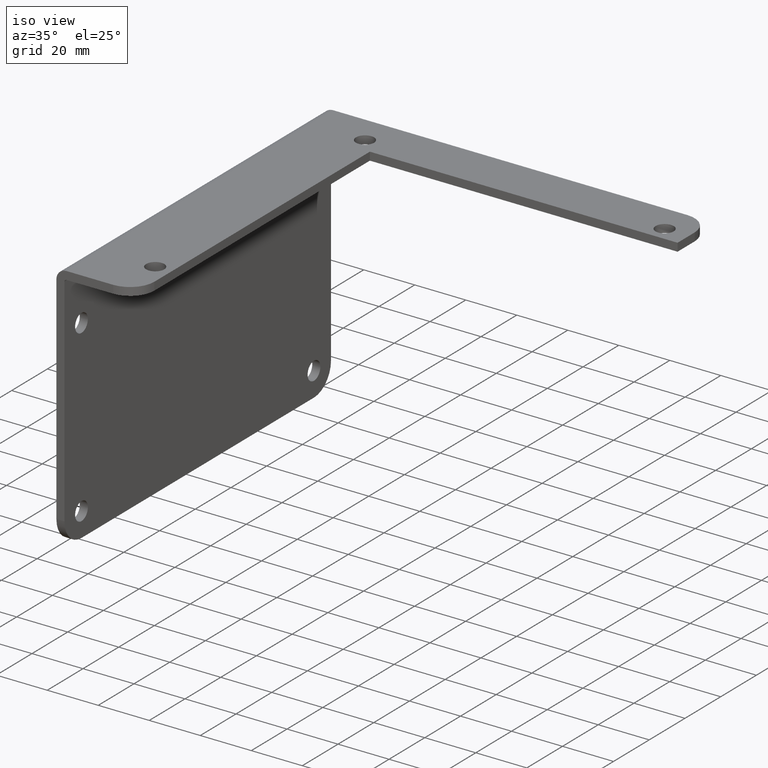
[diagram: clean part render]
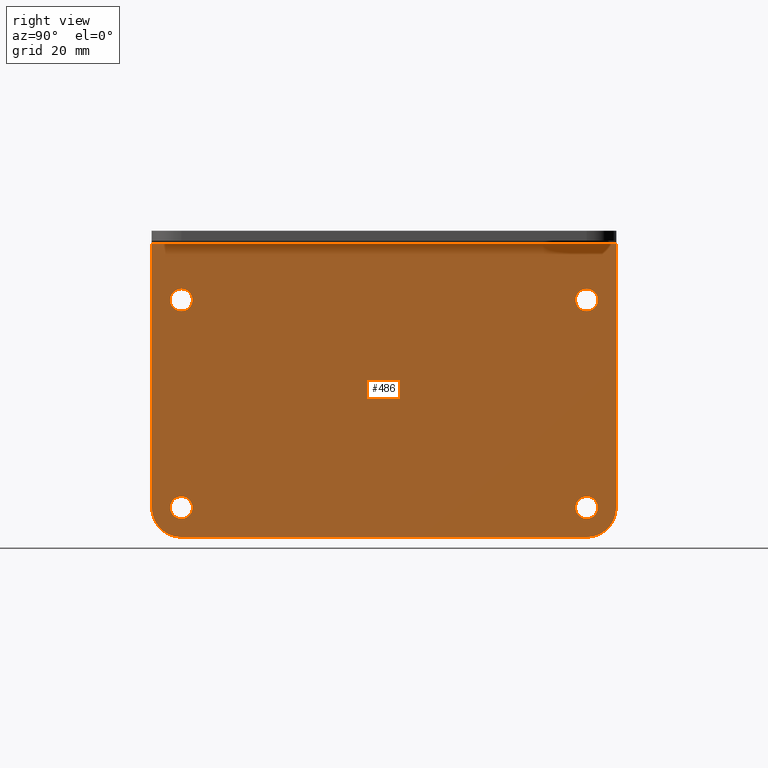
[diagram: tour spotlight — one face highlighted and labeled with its STEP entity id]
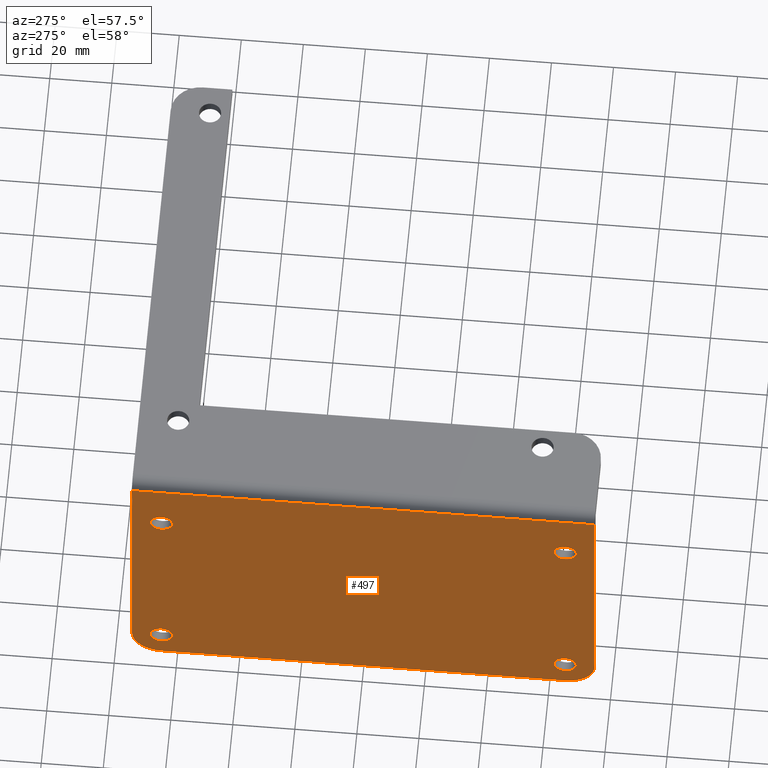
[diagram: tour spotlight — one face highlighted and labeled with its STEP entity id]
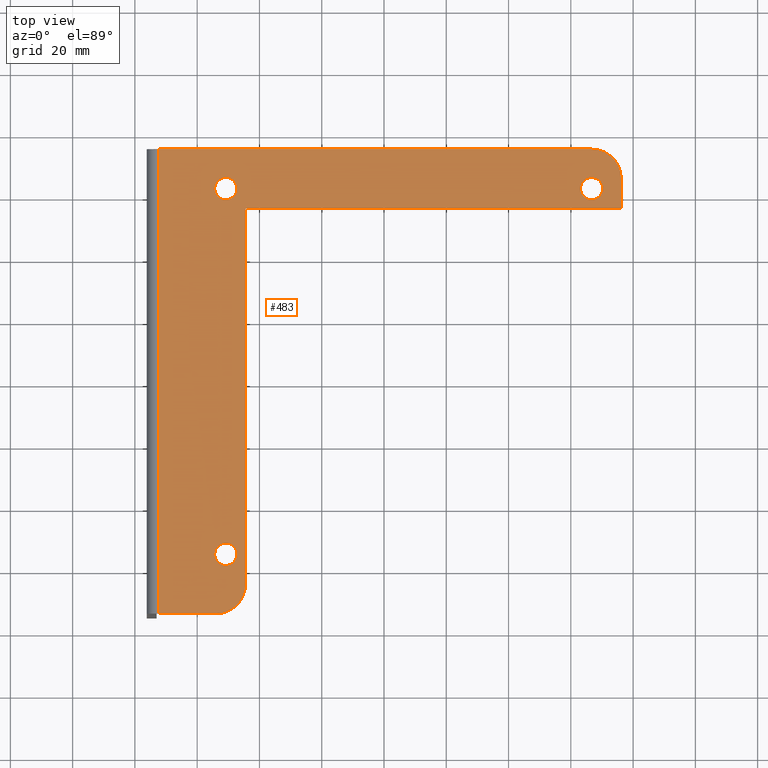
[diagram: tour spotlight — one face highlighted and labeled with its STEP entity id]
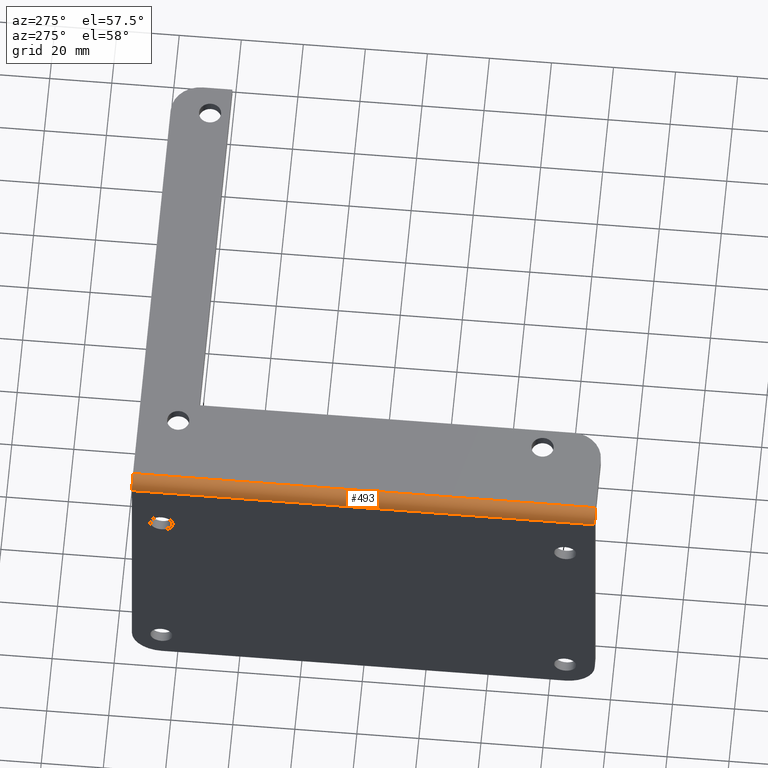
[diagram: tour spotlight — one face highlighted and labeled with its STEP entity id]
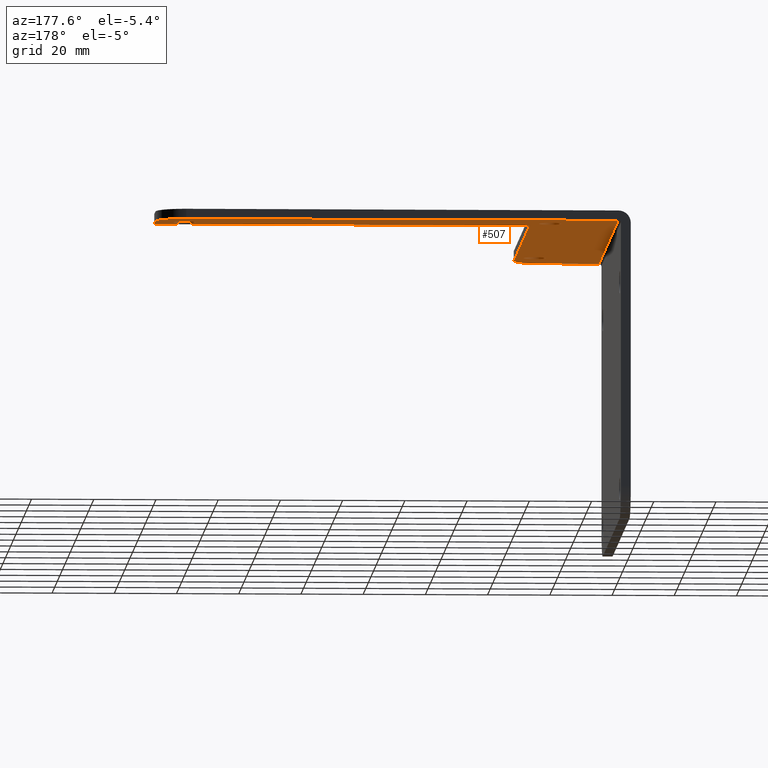
[diagram: tour spotlight — one face highlighted and labeled with its STEP entity id]
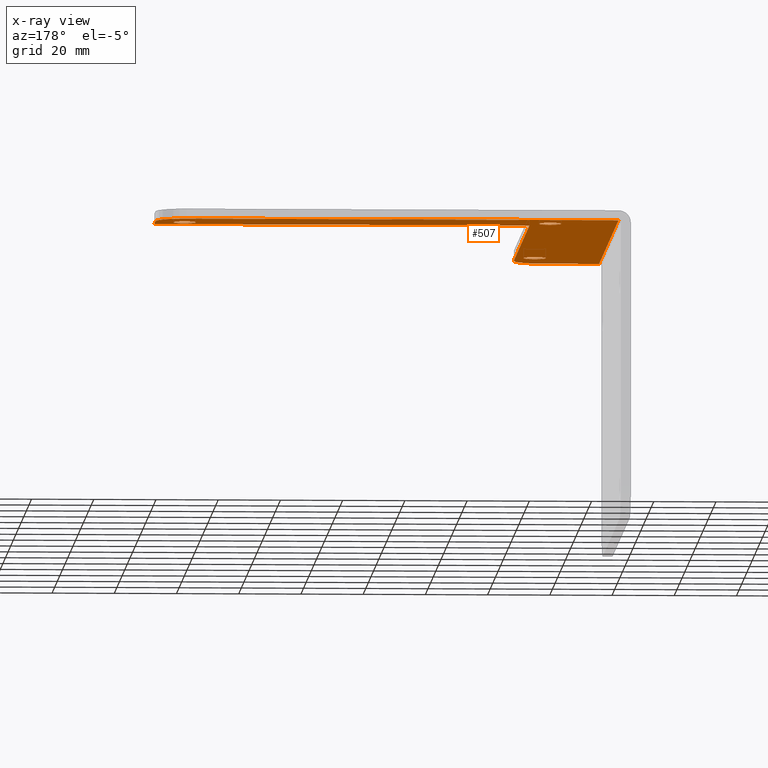
[diagram: x-ray of the same camera — body ghosted, this tour face saturated]
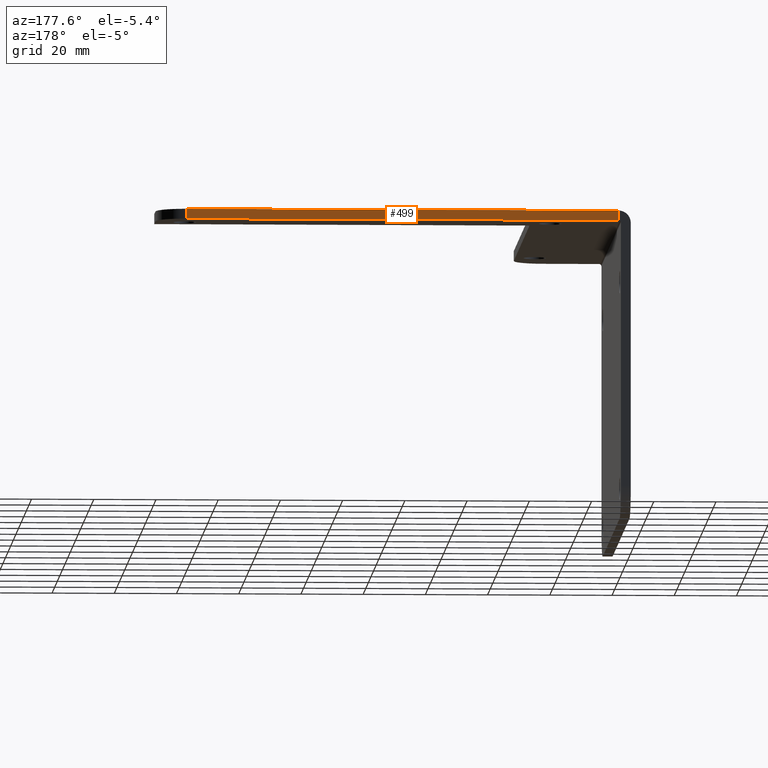
[diagram: tour spotlight — one face highlighted and labeled with its STEP entity id]
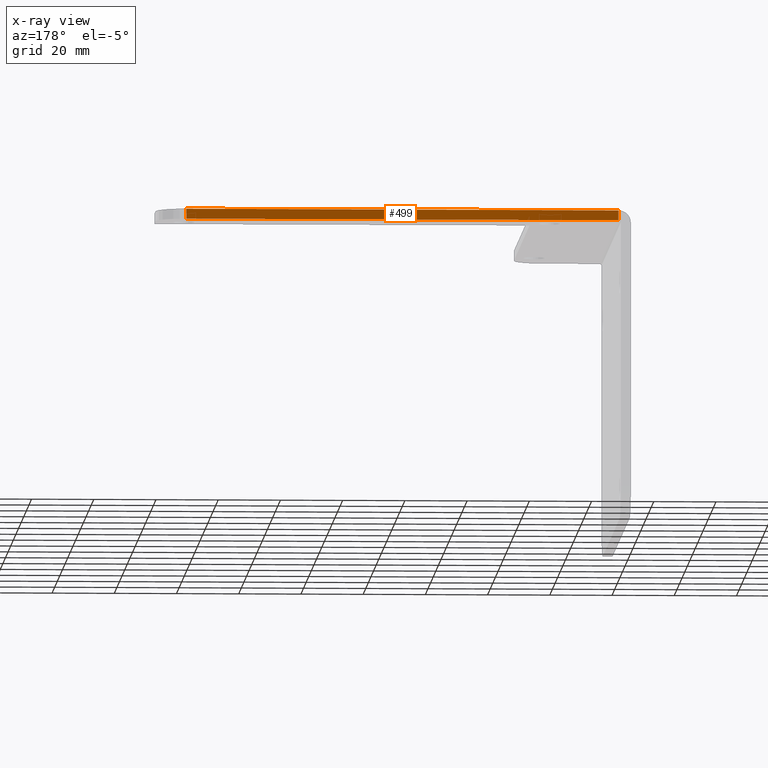
[diagram: x-ray of the same camera — body ghosted, this tour face saturated]
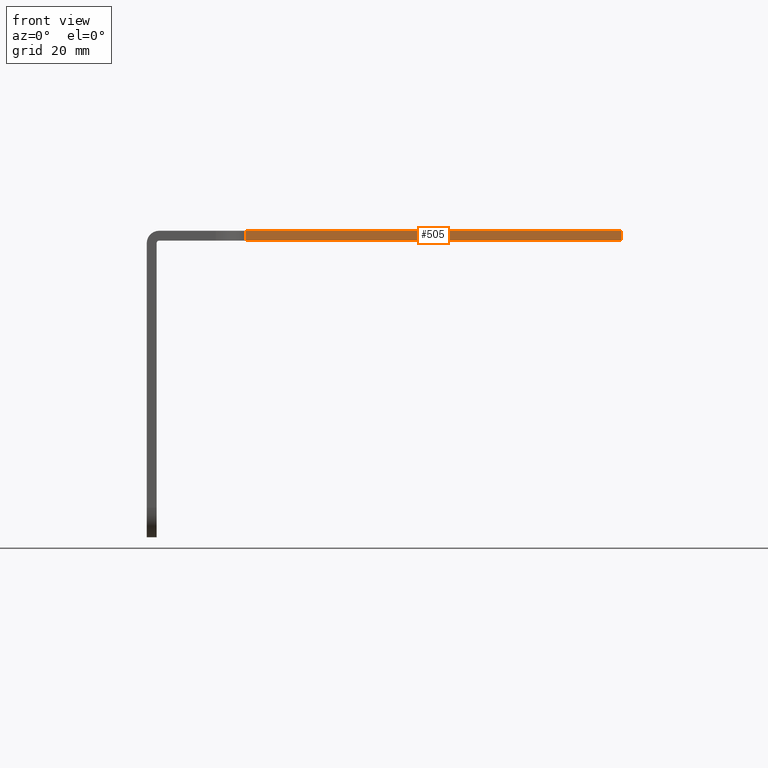
[diagram: tour spotlight — one face highlighted and labeled with its STEP entity id]
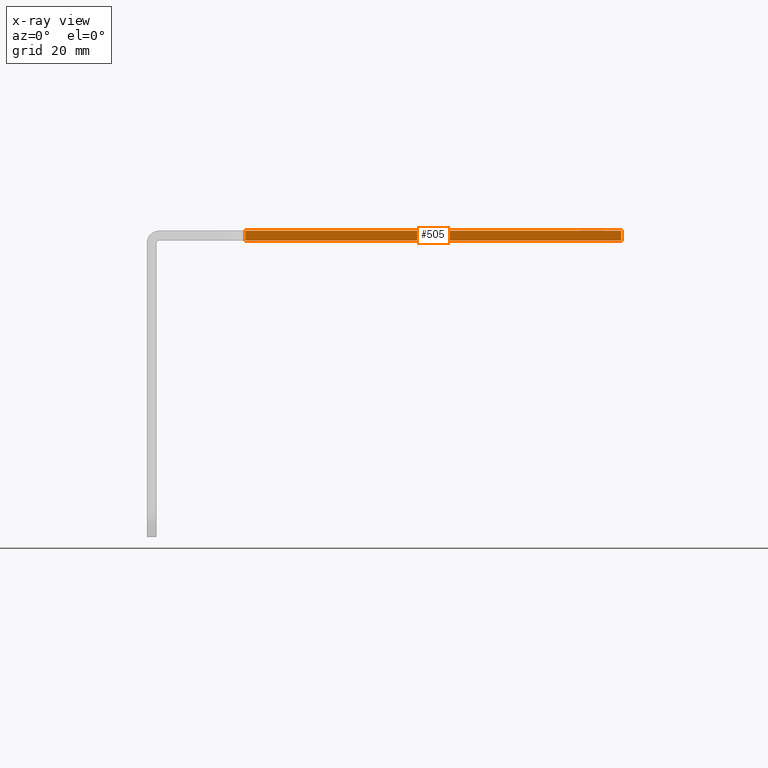
[diagram: x-ray of the same camera — body ghosted, this tour face saturated]
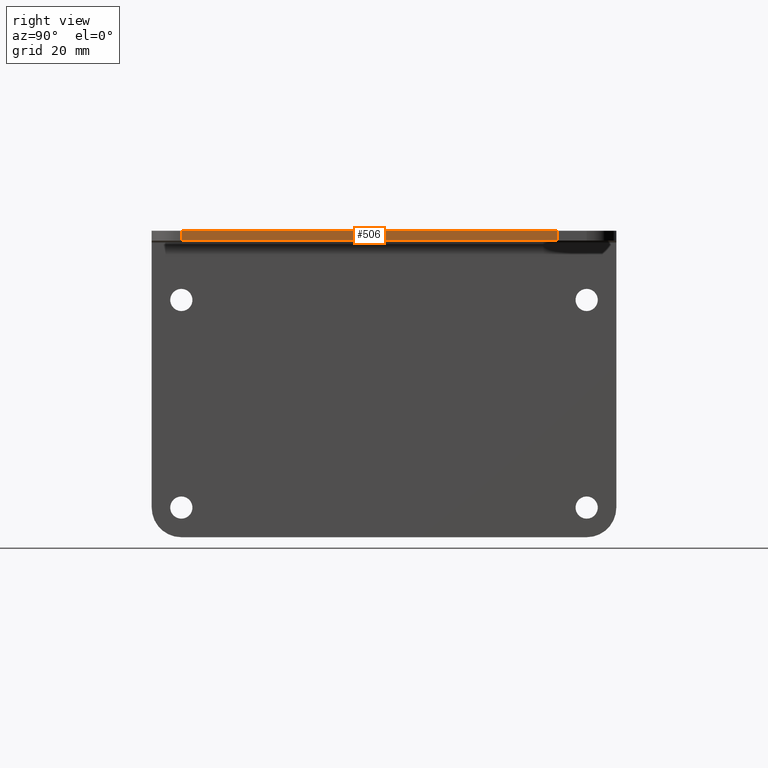
[diagram: tour spotlight — one face highlighted and labeled with its STEP entity id]
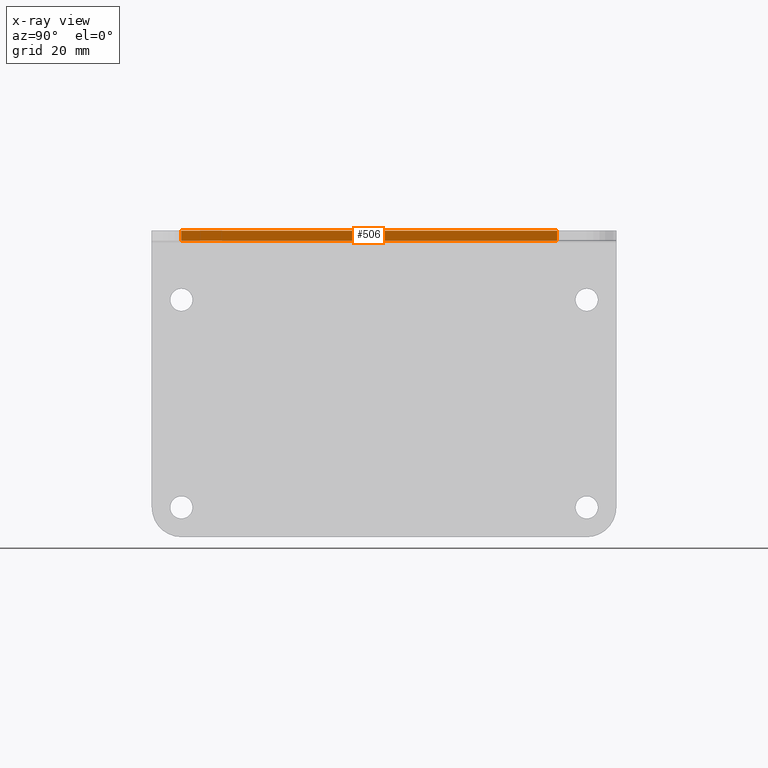
[diagram: x-ray of the same camera — body ghosted, this tour face saturated]
A machine part: a face-by-face anatomy tour. The part has 27 B-rep faces; the first image is the clean iso view, then the 8 largest visible faces are spotlighted one at a time (largest first), each with its STEP entity span.

Face 1 — right view, entity #486. In plain terms, the highlighted planar face has unit normal (-1, 0, -0).
Definition (entity closure, byte-faithful):
#17=FACE_BOUND('',#85,.T.);
#18=FACE_BOUND('',#86,.T.);
#19=FACE_BOUND('',#87,.T.);
#20=FACE_BOUND('',#88,.T.);
#38=PLANE('',#523);
#54=FACE_OUTER_BOUND('',#84,.T.);
#84=EDGE_LOOP('',(#347,#348,#349,#350,#351,#352));
#85=EDGE_LOOP('',(#353));
#86=EDGE_LOOP('',(#354));
#87=EDGE_LOOP('',(#355));
#88=EDGE_LOOP('',(#356));
#136=LINE('',#750,#170);
#139=LINE('',#756,#173);
#140=LINE('',#760,#174);
#141=LINE('',#761,#175);
#170=VECTOR('',#603,3.34375);
#173=VECTOR('',#608,5.125);
#174=VECTOR('',#611,3.34375);
#175=VECTOR('',#612,5.875);
#199=CIRCLE('',#521,0.375);
#200=CIRCLE('',#524,0.375);
#201=CIRCLE('',#525,0.140625);
#202=CIRCLE('',#526,0.140625);
#203=CIRCLE('',#527,0.140625);
#204=CIRCLE('',#528,0.140625);
#234=VERTEX_POINT('',#743);
#235=VERTEX_POINT('',#745);
#236=VERTEX_POINT('',#749);
#238=VERTEX_POINT('',#755);
#239=VERTEX_POINT('',#757);
#240=VERTEX_POINT('',#759);
#241=VERTEX_POINT('',#762);
#242=VERTEX_POINT('',#764);
#243=VERTEX_POINT('',#766);
#244=VERTEX_POINT('',#768);
#278=EDGE_CURVE('',#234,#235,#199,.T.);
#280=EDGE_CURVE('',#235,#236,#136,.T.);
#283=EDGE_CURVE('',#234,#238,#139,.T.);
#284=EDGE_CURVE('',#239,#238,#200,.T.);
#285=EDGE_CURVE('',#239,#240,#140,.T.);
#286=EDGE_CURVE('',#240,#236,#141,.T.);
#287=EDGE_CURVE('',#241,#241,#201,.T.);
#288=EDGE_CURVE('',#242,#242,#202,.T.);
#289=EDGE_CURVE('',#243,#243,#203,.T.);
#290=EDGE_CURVE('',#244,#244,#204,.T.);
#347=ORIENTED_EDGE('',*,*,#278,.F.);
#348=ORIENTED_EDGE('',*,*,#283,.T.);
#349=ORIENTED_EDGE('',*,*,#284,.F.);
#350=ORIENTED_EDGE('',*,*,#285,.T.);
#351=ORIENTED_EDGE('',*,*,#286,.T.);
#352=ORIENTED_EDGE('',*,*,#280,.F.);
#353=ORIENTED_EDGE('',*,*,#287,.T.);
#354=ORIENTED_EDGE('',*,*,#288,.T.);
#355=ORIENTED_EDGE('',*,*,#289,.T.);
#356=ORIENTED_EDGE('',*,*,#290,.T.);
#486=ADVANCED_FACE('',(#54,#17,#18,#19,#20),#38,.F.);
#521=AXIS2_PLACEMENT_3D('',#746,#598,#599);
#523=AXIS2_PLACEMENT_3D('',#754,#606,#607);
#524=AXIS2_PLACEMENT_3D('',#758,#609,#610);
#525=AXIS2_PLACEMENT_3D('',#763,#613,#614);
#526=AXIS2_PLACEMENT_3D('',#765,#615,#616);
#527=AXIS2_PLACEMENT_3D('',#767,#617,#618);
#528=AXIS2_PLACEMENT_3D('',#769,#619,#620);
#598=DIRECTION('center_axis',(-1.,2.04914796784004E-16,-1.71210906378434E-15));
#599=DIRECTION('ref_axis',(1.3187128261911E-15,-0.707106781186547,-0.707106781186548));
#603=DIRECTION('',(-1.72915050606973E-15,-5.95194116066426E-17,1.));
#606=DIRECTION('center_axis',(-1.,2.04914796784004E-16,-1.71210906378434E-15));
#607=DIRECTION('ref_axis',(-2.25597318603832E-15,5.95194116066428E-17,1.));
#608=DIRECTION('',(1.78558234819928E-16,1.,1.78558234819928E-16));
#609=DIRECTION('center_axis',(-1.,2.04914796784004E-16,-1.71210906378434E-15));
#610=DIRECTION('ref_axis',(1.3187128261911E-15,0.707106781186547,-0.707106781186547));
#611=DIRECTION('',(-1.72915050606973E-15,-5.95194116066426E-17,1.));
#612=DIRECTION('',(-2.04914796784004E-16,-1.,-2.49371187223627E-31));
#613=DIRECTION('center_axis',(-1.,2.04914796784004E-16,-1.71210906378434E-15));
#614=DIRECTION('ref_axis',(1.3987061727561E-15,2.3807764642657E-16,-1.));
#615=DIRECTION('center_axis',(-1.,2.04914796784004E-16,-1.71210906378434E-15));
#616=DIRECTION('ref_axis',(0.,2.3807764642657E-16,-1.));
#617=DIRECTION('center_axis',(-1.,2.04914796784004E-16,-1.71210906378434E-15));
#618=DIRECTION('ref_axis',(0.,2.3807764642657E-16,-1.));
#619=DIRECTION('center_axis',(-1.,2.04914796784004E-16,-1.71210906378434E-15));
#620=DIRECTION('ref_axis',(1.3987061727561E-15,2.3807764642657E-16,-1.));
#743=CARTESIAN_POINT('',(-2.87499999999999,-2.5625,-3.75));
#745=CARTESIAN_POINT('',(-2.87499999999999,-2.9375,-3.375));
#746=CARTESIAN_POINT('Origin',(-2.87499999999999,-2.5625,-3.375));
#749=CARTESIAN_POINT('',(-2.875,-2.9375,-0.0312500000000006));
#750=CARTESIAN_POINT('',(-2.875,-2.9375,0.146642684009521));
#754=CARTESIAN_POINT('Origin',(-2.875,6.33823302807758E-17,-1.84615182899762));
#755=CARTESIAN_POINT('',(-2.87499999999999,2.5625,-3.75));
#756=CARTESIAN_POINT('',(-2.87499999999999,-2.9375,-3.75));
#757=CARTESIAN_POINT('',(-2.87499999999999,2.9375,-3.375));
#758=CARTESIAN_POINT('Origin',(-2.87499999999999,2.5625,-3.375));
#759=CARTESIAN_POINT('',(-2.875,2.9375,-0.0312499999999999));
#760=CARTESIAN_POINT('',(-2.875,2.9375,0.146642684009522));
#761=CARTESIAN_POINT('',(-2.875,3.0776451997304E-17,-0.0312499999999999));
#762=CARTESIAN_POINT('',(-2.875,2.5625,-0.609374999999999));
#763=CARTESIAN_POINT('Origin',(-2.875,2.5625,-0.749999999999999));
#764=CARTESIAN_POINT('',(-2.87499999999999,2.5625,-3.234375));
#765=CARTESIAN_POINT('Origin',(-2.875,2.5625,-3.375));
#766=CARTESIAN_POINT('',(-2.875,-2.5625,-3.234375));
#767=CARTESIAN_POINT('Origin',(-2.875,-2.5625,-3.375));
#768=CARTESIAN_POINT('',(-2.875,-2.5625,-0.609375000000001));
#769=CARTESIAN_POINT('Origin',(-2.875,-2.5625,-0.750000000000001));

Face 2 — auxiliary view, entity #497. In plain terms, the highlighted planar face has unit normal (-1, 0, -0).
Definition (entity closure, byte-faithful):
#25=FACE_BOUND('',#104,.T.);
#26=FACE_BOUND('',#105,.T.);
#27=FACE_BOUND('',#106,.T.);
#28=FACE_BOUND('',#107,.T.);
#43=PLANE('',#548);
#65=FACE_OUTER_BOUND('',#103,.T.);
#103=EDGE_LOOP('',(#389,#390,#391,#392,#393,#394));
#104=EDGE_LOOP('',(#395));
#105=EDGE_LOOP('',(#396));
#106=EDGE_LOOP('',(#397));
#107=EDGE_LOOP('',(#398));
#138=LINE('',#753,#172);
#144=LINE('',#778,#178);
#146=LINE('',#793,#180);
#148=LINE('',#803,#182);
#172=VECTOR('',#605,3.34375);
#178=VECTOR('',#629,3.34375);
#180=VECTOR('',#649,5.875);
#182=VECTOR('',#665,5.125);
#198=CIRCLE('',#520,0.375);
#205=CIRCLE('',#530,0.375);
#206=CIRCLE('',#533,0.140625);
#207=CIRCLE('',#535,0.140625);
#208=CIRCLE('',#537,0.140625);
#209=CIRCLE('',#539,0.140625);
#232=VERTEX_POINT('',#740);
#233=VERTEX_POINT('',#741);
#237=VERTEX_POINT('',#751);
#245=VERTEX_POINT('',#771);
#246=VERTEX_POINT('',#772);
#247=VERTEX_POINT('',#777);
#248=VERTEX_POINT('',#781);
#249=VERTEX_POINT('',#784);
#250=VERTEX_POINT('',#787);
#251=VERTEX_POINT('',#790);
#276=EDGE_CURVE('',#232,#233,#198,.T.);
#282=EDGE_CURVE('',#237,#232,#138,.T.);
#291=EDGE_CURVE('',#245,#246,#205,.T.);
#294=EDGE_CURVE('',#246,#247,#144,.T.);
#296=EDGE_CURVE('',#248,#248,#206,.T.);
#297=EDGE_CURVE('',#249,#249,#207,.T.);
#298=EDGE_CURVE('',#250,#250,#208,.T.);
#299=EDGE_CURVE('',#251,#251,#209,.T.);
#300=EDGE_CURVE('',#237,#247,#146,.T.);
#306=EDGE_CURVE('',#233,#245,#148,.T.);
#389=ORIENTED_EDGE('',*,*,#276,.F.);
#390=ORIENTED_EDGE('',*,*,#282,.F.);
#391=ORIENTED_EDGE('',*,*,#300,.T.);
#392=ORIENTED_EDGE('',*,*,#294,.F.);
#393=ORIENTED_EDGE('',*,*,#291,.F.);
#394=ORIENTED_EDGE('',*,*,#306,.F.);
#395=ORIENTED_EDGE('',*,*,#296,.T.);
#396=ORIENTED_EDGE('',*,*,#297,.T.);
#397=ORIENTED_EDGE('',*,*,#298,.T.);
#398=ORIENTED_EDGE('',*,*,#299,.T.);
#497=ADVANCED_FACE('',(#65,#25,#26,#27,#28),#43,.T.);
#520=AXIS2_PLACEMENT_3D('',#742,#595,#596);
#530=AXIS2_PLACEMENT_3D('',#773,#623,#624);
#533=AXIS2_PLACEMENT_3D('',#782,#633,#634);
#535=AXIS2_PLACEMENT_3D('',#785,#637,#638);
#537=AXIS2_PLACEMENT_3D('',#788,#641,#642);
#539=AXIS2_PLACEMENT_3D('',#791,#645,#646);
#548=AXIS2_PLACEMENT_3D('',#804,#666,#667);
#595=DIRECTION('center_axis',(1.,-2.04932946440049E-16,1.7179240638828E-15));
#596=DIRECTION('ref_axis',(1.3187128261911E-15,-0.707106781186547,-0.707106781186548));
#605=DIRECTION('',(1.80915516651892E-15,-1.04204263129973E-31,-1.));
#623=DIRECTION('center_axis',(1.,-2.04932946440049E-16,1.7179240638828E-15));
#624=DIRECTION('ref_axis',(1.3187128261911E-15,0.707106781186547,-0.707106781186547));
#629=DIRECTION('',(-1.72915050606973E-15,-5.95194116066426E-17,1.));
#633=DIRECTION('center_axis',(1.,-2.04932946440049E-16,1.7179240638828E-15));
#634=DIRECTION('ref_axis',(1.3987061727561E-15,2.3807764642657E-16,-1.));
#637=DIRECTION('center_axis',(1.,-2.04932946440049E-16,1.7179240638828E-15));
#638=DIRECTION('ref_axis',(0.,2.3807764642657E-16,-1.));
#641=DIRECTION('center_axis',(1.,-2.04932946440049E-16,1.7179240638828E-15));
#642=DIRECTION('ref_axis',(0.,2.3807764642657E-16,-1.));
#645=DIRECTION('center_axis',(1.,-2.04932946440049E-16,1.7179240638828E-15));
#646=DIRECTION('ref_axis',(1.3987061727561E-15,2.3807764642657E-16,-1.));
#649=DIRECTION('',(2.04932946440049E-16,1.,2.49402316143366E-31));
#665=DIRECTION('',(1.78558234819928E-16,1.,1.78558234819928E-16));
#666=DIRECTION('center_axis',(-1.,2.04932946440049E-16,-1.7179240638828E-15));
#667=DIRECTION('ref_axis',(-2.25597318603832E-15,5.95194116066428E-17,1.));
#740=CARTESIAN_POINT('',(-2.99999999999999,-2.9375,-3.375));
#741=CARTESIAN_POINT('',(-2.99999999999999,-2.5625,-3.75));
#742=CARTESIAN_POINT('Origin',(-2.99999999999999,-2.5625,-3.375));
#751=CARTESIAN_POINT('',(-3.,-2.9375,-0.031250000000001));
#753=CARTESIAN_POINT('',(-3.,-2.9375,-0.031250000000001));
#771=CARTESIAN_POINT('',(-2.99999999999999,2.5625,-3.75));
#772=CARTESIAN_POINT('',(-2.99999999999999,2.9375,-3.375));
#773=CARTESIAN_POINT('Origin',(-2.99999999999999,2.5625,-3.375));
#777=CARTESIAN_POINT('',(-3.,2.9375,-0.0312500000000003));
#778=CARTESIAN_POINT('',(-3.,2.9375,0.146642684009521));
#781=CARTESIAN_POINT('',(-3.,2.5625,-0.609374999999999));
#782=CARTESIAN_POINT('Origin',(-3.,2.5625,-0.749999999999999));
#784=CARTESIAN_POINT('',(-2.99999999999999,2.5625,-3.234375));
#785=CARTESIAN_POINT('Origin',(-3.,2.5625,-3.375));
#787=CARTESIAN_POINT('',(-3.,-2.5625,-3.234375));
#788=CARTESIAN_POINT('Origin',(-3.,-2.5625,-3.375));
#790=CARTESIAN_POINT('',(-3.,-2.5625,-0.609375000000001));
#791=CARTESIAN_POINT('Origin',(-3.,-2.5625,-0.750000000000001));
#793=CARTESIAN_POINT('',(-3.,4.73044941014611E-17,-0.031250000000001));
#803=CARTESIAN_POINT('',(-2.99999999999999,-2.9375,-3.75));
#804=CARTESIAN_POINT('Origin',(-3.,7.08222567316061E-17,-1.84615182899762));

Face 3 — top view, entity #483. In plain terms, the highlighted planar face has unit normal (0, 0, 1).
Definition (entity closure, byte-faithful):
#14=FACE_BOUND('',#79,.T.);
#15=FACE_BOUND('',#80,.T.);
#16=FACE_BOUND('',#81,.T.);
#36=PLANE('',#514);
#51=FACE_OUTER_BOUND('',#78,.T.);
#78=EDGE_LOOP('',(#328,#329,#330,#331,#332,#333,#334,#335));
#79=EDGE_LOOP('',(#336));
#80=EDGE_LOOP('',(#337));
#81=EDGE_LOOP('',(#338));
#126=LINE('',#717,#160);
#129=LINE('',#723,#163);
#130=LINE('',#725,#164);
#131=LINE('',#727,#165);
#132=LINE('',#731,#166);
#133=LINE('',#732,#167);
#160=VECTOR('',#575,0.718750000000001);
#163=VECTOR('',#580,4.75);
#164=VECTOR('',#581,4.75);
#165=VECTOR('',#582,0.375000000000001);
#166=VECTOR('',#585,5.46875);
#167=VECTOR('',#586,5.875);
#192=CIRCLE('',#511,0.375);
#194=CIRCLE('',#515,0.375);
#195=CIRCLE('',#516,0.140625);
#196=CIRCLE('',#517,0.140625);
#197=CIRCLE('',#518,0.140625);
#218=VERTEX_POINT('',#707);
#219=VERTEX_POINT('',#708);
#222=VERTEX_POINT('',#716);
#224=VERTEX_POINT('',#722);
#225=VERTEX_POINT('',#724);
#226=VERTEX_POINT('',#726);
#227=VERTEX_POINT('',#728);
#228=VERTEX_POINT('',#730);
#229=VERTEX_POINT('',#733);
#230=VERTEX_POINT('',#735);
#231=VERTEX_POINT('',#737);
#260=EDGE_CURVE('',#218,#219,#192,.T.);
#264=EDGE_CURVE('',#219,#222,#126,.T.);
#267=EDGE_CURVE('',#224,#218,#129,.T.);
#268=EDGE_CURVE('',#225,#224,#130,.T.);
#269=EDGE_CURVE('',#226,#225,#131,.T.);
#270=EDGE_CURVE('',#227,#226,#194,.T.);
#271=EDGE_CURVE('',#228,#227,#132,.T.);
#272=EDGE_CURVE('',#228,#222,#133,.T.);
#273=EDGE_CURVE('',#229,#229,#195,.T.);
#274=EDGE_CURVE('',#230,#230,#196,.T.);
#275=EDGE_CURVE('',#231,#231,#197,.T.);
#328=ORIENTED_EDGE('',*,*,#260,.F.);
#329=ORIENTED_EDGE('',*,*,#267,.F.);
#330=ORIENTED_EDGE('',*,*,#268,.F.);
#331=ORIENTED_EDGE('',*,*,#269,.F.);
#332=ORIENTED_EDGE('',*,*,#270,.F.);
#333=ORIENTED_EDGE('',*,*,#271,.F.);
#334=ORIENTED_EDGE('',*,*,#272,.T.);
#335=ORIENTED_EDGE('',*,*,#264,.F.);
#336=ORIENTED_EDGE('',*,*,#273,.T.);
#337=ORIENTED_EDGE('',*,*,#274,.T.);
#338=ORIENTED_EDGE('',*,*,#275,.T.);
#483=ADVANCED_FACE('',(#51,#14,#15,#16),#36,.T.);
#511=AXIS2_PLACEMENT_3D('',#709,#567,#568);
#514=AXIS2_PLACEMENT_3D('',#721,#578,#579);
#515=AXIS2_PLACEMENT_3D('',#729,#583,#584);
#516=AXIS2_PLACEMENT_3D('',#734,#587,#588);
#517=AXIS2_PLACEMENT_3D('',#736,#589,#590);
#518=AXIS2_PLACEMENT_3D('',#738,#591,#592);
#567=DIRECTION('center_axis',(0.,0.,-1.));
#568=DIRECTION('ref_axis',(0.707106781186548,-0.707106781186548,0.));
#575=DIRECTION('',(-1.,0.,0.));
#578=DIRECTION('center_axis',(0.,0.,1.));
#579=DIRECTION('ref_axis',(1.,0.,0.));
#580=DIRECTION('',(2.72918277610947E-16,-1.,0.));
#581=DIRECTION('',(-1.,-1.47232228711169E-16,0.));
#582=DIRECTION('',(1.27155106614191E-16,-1.,0.));
#583=DIRECTION('center_axis',(0.,0.,-1.));
#584=DIRECTION('ref_axis',(1.,0.,0.));
#585=DIRECTION('',(1.,3.10823593945801E-16,0.));
#586=DIRECTION('',(0.,-1.,0.));
#587=DIRECTION('center_axis',(0.,0.,-1.));
#588=DIRECTION('ref_axis',(-1.,0.,0.));
#589=DIRECTION('center_axis',(0.,0.,-1.));
#590=DIRECTION('ref_axis',(-1.,0.,0.));
#591=DIRECTION('center_axis',(0.,0.,-1.));
#592=DIRECTION('ref_axis',(-1.,0.,0.));
#707=CARTESIAN_POINT('',(-1.75,-2.5625,0.125));
#708=CARTESIAN_POINT('',(-2.125,-2.9375,0.125));
#709=CARTESIAN_POINT('Origin',(-2.125,-2.5625,0.125));
#716=CARTESIAN_POINT('',(-2.84375,-2.9375,0.125));
#717=CARTESIAN_POINT('',(-3.,-2.9375,0.125));
#721=CARTESIAN_POINT('Origin',(-1.05301263832873,1.01140124458396,0.125));
#722=CARTESIAN_POINT('',(-1.75,2.1875,0.125));
#723=CARTESIAN_POINT('',(-1.75,-2.9375,0.125));
#724=CARTESIAN_POINT('',(3.,2.1875,0.125));
#725=CARTESIAN_POINT('',(-1.75,2.1875,0.125));
#726=CARTESIAN_POINT('',(3.,2.5625,0.125));
#727=CARTESIAN_POINT('',(3.,-2.9375,0.125));
#728=CARTESIAN_POINT('',(2.625,2.9375,0.125));
#729=CARTESIAN_POINT('Origin',(2.625,2.5625,0.125));
#730=CARTESIAN_POINT('',(-2.84375,2.9375,0.125));
#731=CARTESIAN_POINT('',(2.625,2.9375,0.125));
#732=CARTESIAN_POINT('',(-2.84375,1.97445062229198,0.125));
#733=CARTESIAN_POINT('',(2.765625,2.4375,0.125));
#734=CARTESIAN_POINT('Origin',(2.625,2.4375,0.125));
#735=CARTESIAN_POINT('',(-1.859375,-2.1875,0.125));
#736=CARTESIAN_POINT('Origin',(-2.,-2.1875,0.125));
#737=CARTESIAN_POINT('',(-1.859375,2.4375,0.125));
#738=CARTESIAN_POINT('Origin',(-2.,2.4375,0.125));

Face 4 — auxiliary view, entity #493. In plain terms, the highlighted cylindrical surface (edge-blend (fillet) strip) has radius 3.9688 mm, axis along (-0, -1, 0).
Definition (entity closure, byte-faithful):
#61=FACE_OUTER_BOUND('',#99,.T.);
#99=EDGE_LOOP('',(#373,#374,#375,#376));
#133=LINE('',#732,#167);
#146=LINE('',#793,#180);
#167=VECTOR('',#586,5.875);
#180=VECTOR('',#649,5.875);
#210=CIRCLE('',#541,0.156250000000001);
#211=CIRCLE('',#542,0.15625);
#222=VERTEX_POINT('',#716);
#228=VERTEX_POINT('',#730);
#237=VERTEX_POINT('',#751);
#247=VERTEX_POINT('',#777);
#272=EDGE_CURVE('',#228,#222,#133,.T.);
#300=EDGE_CURVE('',#237,#247,#146,.T.);
#301=EDGE_CURVE('',#222,#237,#210,.T.);
#302=EDGE_CURVE('',#247,#228,#211,.T.);
#373=ORIENTED_EDGE('',*,*,#300,.F.);
#374=ORIENTED_EDGE('',*,*,#301,.F.);
#375=ORIENTED_EDGE('',*,*,#272,.F.);
#376=ORIENTED_EDGE('',*,*,#302,.F.);
#447=CYLINDRICAL_SURFACE('',#540,0.15625);
#493=ADVANCED_FACE('',(#61),#447,.T.);
#540=AXIS2_PLACEMENT_3D('',#792,#647,#648);
#541=AXIS2_PLACEMENT_3D('',#794,#650,#651);
#542=AXIS2_PLACEMENT_3D('',#795,#652,#653);
#586=DIRECTION('',(0.,-1.,0.));
#647=DIRECTION('center_axis',(-5.95194116066427E-17,-1.,0.));
#648=DIRECTION('ref_axis',(0.,0.,1.));
#649=DIRECTION('',(2.04932946440049E-16,1.,2.49402316143366E-31));
#650=DIRECTION('center_axis',(-5.95194116066427E-17,-1.,0.));
#651=DIRECTION('ref_axis',(-1.56655091348683E-14,0.,1.));
#652=DIRECTION('center_axis',(5.95194116066427E-17,1.,0.));
#653=DIRECTION('ref_axis',(-1.,0.,5.385018765111E-15));
#716=CARTESIAN_POINT('',(-2.84375,-2.9375,0.125));
#730=CARTESIAN_POINT('',(-2.84375,2.9375,0.125));
#732=CARTESIAN_POINT('',(-2.84375,1.97445062229198,0.125));
#751=CARTESIAN_POINT('',(-3.,-2.9375,-0.031250000000001));
#777=CARTESIAN_POINT('',(-3.,2.9375,-0.0312500000000003));
#792=CARTESIAN_POINT('Origin',(-2.84375,0.,-0.0312500000000003));
#793=CARTESIAN_POINT('',(-3.,4.73044941014611E-17,-0.031250000000001));
#794=CARTESIAN_POINT('Origin',(-2.84375,-2.9375,-0.0312500000000003));
#795=CARTESIAN_POINT('Origin',(-2.84375,2.9375,-0.0312500000000003));

Face 5 — auxiliary view, entity #507. An x-ray twin of the same camera follows (body ghosted, this face saturated) — the face is partly hidden behind the body. In plain terms, the highlighted planar face has unit normal (0, 0, 1).
Definition (entity closure, byte-faithful):
#32=FACE_BOUND('',#121,.T.);
#33=FACE_BOUND('',#122,.T.);
#34=FACE_BOUND('',#123,.T.);
#48=PLANE('',#562);
#75=FACE_OUTER_BOUND('',#120,.T.);
#120=EDGE_LOOP('',(#429,#430,#431,#432,#433,#434,#435,#436));
#121=EDGE_LOOP('',(#437));
#122=EDGE_LOOP('',(#438));
#123=EDGE_LOOP('',(#439));
#128=LINE('',#720,#162);
#149=LINE('',#806,#183);
#151=LINE('',#810,#185);
#154=LINE('',#827,#188);
#156=LINE('',#831,#190);
#157=LINE('',#833,#191);
#162=VECTOR('',#577,0.718750000000001);
#183=VECTOR('',#670,5.875);
#185=VECTOR('',#674,5.46875);
#188=VECTOR('',#695,0.375000000000001);
#190=VECTOR('',#699,4.75);
#191=VECTOR('',#702,4.75);
#193=CIRCLE('',#512,0.375);
#214=CIRCLE('',#552,0.140625);
#215=CIRCLE('',#554,0.140625);
#216=CIRCLE('',#556,0.140625);
#217=CIRCLE('',#558,0.375);
#220=VERTEX_POINT('',#710);
#221=VERTEX_POINT('',#712);
#223=VERTEX_POINT('',#718);
#252=VERTEX_POINT('',#799);
#253=VERTEX_POINT('',#808);
#254=VERTEX_POINT('',#812);
#255=VERTEX_POINT('',#815);
#256=VERTEX_POINT('',#818);
#257=VERTEX_POINT('',#821);
#258=VERTEX_POINT('',#825);
#259=VERTEX_POINT('',#829);
#262=EDGE_CURVE('',#220,#221,#193,.T.);
#266=EDGE_CURVE('',#223,#220,#128,.T.);
#307=EDGE_CURVE('',#223,#252,#149,.T.);
#309=EDGE_CURVE('',#253,#252,#151,.T.);
#310=EDGE_CURVE('',#254,#254,#214,.T.);
#311=EDGE_CURVE('',#255,#255,#215,.T.);
#312=EDGE_CURVE('',#256,#256,#216,.T.);
#314=EDGE_CURVE('',#257,#253,#217,.T.);
#316=EDGE_CURVE('',#258,#257,#154,.T.);
#318=EDGE_CURVE('',#259,#258,#156,.T.);
#319=EDGE_CURVE('',#221,#259,#157,.T.);
#429=ORIENTED_EDGE('',*,*,#262,.F.);
#430=ORIENTED_EDGE('',*,*,#266,.F.);
#431=ORIENTED_EDGE('',*,*,#307,.T.);
#432=ORIENTED_EDGE('',*,*,#309,.F.);
#433=ORIENTED_EDGE('',*,*,#314,.F.);
#434=ORIENTED_EDGE('',*,*,#316,.F.);
#435=ORIENTED_EDGE('',*,*,#318,.F.);
#436=ORIENTED_EDGE('',*,*,#319,.F.);
#437=ORIENTED_EDGE('',*,*,#310,.T.);
#438=ORIENTED_EDGE('',*,*,#311,.T.);
#439=ORIENTED_EDGE('',*,*,#312,.T.);
#507=ADVANCED_FACE('',(#75,#32,#33,#34),#48,.F.);
#512=AXIS2_PLACEMENT_3D('',#713,#570,#571);
#552=AXIS2_PLACEMENT_3D('',#813,#677,#678);
#554=AXIS2_PLACEMENT_3D('',#816,#681,#682);
#556=AXIS2_PLACEMENT_3D('',#819,#685,#686);
#558=AXIS2_PLACEMENT_3D('',#823,#690,#691);
#562=AXIS2_PLACEMENT_3D('',#834,#703,#704);
#570=DIRECTION('center_axis',(0.,0.,1.));
#571=DIRECTION('ref_axis',(0.707106781186548,-0.707106781186548,0.));
#577=DIRECTION('',(1.,0.,0.));
#670=DIRECTION('',(0.,1.,0.));
#674=DIRECTION('',(-1.,-3.10823593945801E-16,0.));
#677=DIRECTION('center_axis',(0.,0.,1.));
#678=DIRECTION('ref_axis',(-1.,0.,0.));
#681=DIRECTION('center_axis',(0.,0.,1.));
#682=DIRECTION('ref_axis',(-1.,0.,0.));
#685=DIRECTION('center_axis',(0.,0.,1.));
#686=DIRECTION('ref_axis',(-1.,0.,0.));
#690=DIRECTION('center_axis',(0.,0.,1.));
#691=DIRECTION('ref_axis',(1.,0.,0.));
#695=DIRECTION('',(-1.27155106614191E-16,1.,0.));
#699=DIRECTION('',(1.,1.47232228711169E-16,0.));
#702=DIRECTION('',(-2.72918277610947E-16,1.,0.));
#703=DIRECTION('center_axis',(0.,0.,1.));
#704=DIRECTION('ref_axis',(1.,0.,0.));
#710=CARTESIAN_POINT('',(-2.125,-2.9375,0.));
#712=CARTESIAN_POINT('',(-1.75,-2.5625,0.));
#713=CARTESIAN_POINT('Origin',(-2.125,-2.5625,0.));
#718=CARTESIAN_POINT('',(-2.84375,-2.9375,0.));
#720=CARTESIAN_POINT('',(-3.,-2.9375,0.));
#799=CARTESIAN_POINT('',(-2.84375,2.9375,0.));
#806=CARTESIAN_POINT('',(-2.84375,1.97445062229198,0.));
#808=CARTESIAN_POINT('',(2.625,2.9375,0.));
#810=CARTESIAN_POINT('',(2.625,2.9375,0.));
#812=CARTESIAN_POINT('',(2.765625,2.4375,0.));
#813=CARTESIAN_POINT('Origin',(2.625,2.4375,0.));
#815=CARTESIAN_POINT('',(-1.859375,-2.1875,0.));
#816=CARTESIAN_POINT('Origin',(-2.,-2.1875,0.));
#818=CARTESIAN_POINT('',(-1.859375,2.4375,0.));
#819=CARTESIAN_POINT('Origin',(-2.,2.4375,0.));
#821=CARTESIAN_POINT('',(3.,2.5625,0.));
#823=CARTESIAN_POINT('Origin',(2.625,2.5625,0.));
#825=CARTESIAN_POINT('',(3.,2.1875,0.));
#827=CARTESIAN_POINT('',(3.,-2.9375,0.));
#829=CARTESIAN_POINT('',(-1.75,2.1875,0.));
#831=CARTESIAN_POINT('',(-1.75,2.1875,0.));
#833=CARTESIAN_POINT('',(-1.75,-2.9375,0.));
#834=CARTESIAN_POINT('Origin',(-1.05301263832873,1.01140124458396,0.));

Face 6 — auxiliary view, entity #499. An x-ray twin of the same camera follows (body ghosted, this face saturated) — the face is partly hidden behind the body. In plain terms, the highlighted planar face has unit normal (-0, 1, 0).
Definition (entity closure, byte-faithful):
#44=PLANE('',#550);
#67=FACE_OUTER_BOUND('',#109,.T.);
#109=EDGE_LOOP('',(#403,#404,#405,#406));
#132=LINE('',#731,#166);
#147=LINE('',#800,#181);
#150=LINE('',#809,#184);
#151=LINE('',#810,#185);
#166=VECTOR('',#585,5.46875);
#181=VECTOR('',#660,0.125);
#184=VECTOR('',#673,0.125);
#185=VECTOR('',#674,5.46875);
#227=VERTEX_POINT('',#728);
#228=VERTEX_POINT('',#730);
#252=VERTEX_POINT('',#799);
#253=VERTEX_POINT('',#808);
#271=EDGE_CURVE('',#228,#227,#132,.T.);
#304=EDGE_CURVE('',#252,#228,#147,.T.);
#308=EDGE_CURVE('',#253,#227,#150,.T.);
#309=EDGE_CURVE('',#253,#252,#151,.T.);
#403=ORIENTED_EDGE('',*,*,#304,.T.);
#404=ORIENTED_EDGE('',*,*,#271,.T.);
#405=ORIENTED_EDGE('',*,*,#308,.F.);
#406=ORIENTED_EDGE('',*,*,#309,.T.);
#499=ADVANCED_FACE('',(#67),#44,.T.);
#550=AXIS2_PLACEMENT_3D('',#807,#671,#672);
#585=DIRECTION('',(1.,3.10823593945801E-16,0.));
#660=DIRECTION('',(0.,0.,1.));
#671=DIRECTION('center_axis',(-3.10823593945801E-16,1.,0.));
#672=DIRECTION('ref_axis',(0.,0.,1.));
#673=DIRECTION('',(0.,0.,1.));
#674=DIRECTION('',(-1.,-3.10823593945801E-16,0.));
#728=CARTESIAN_POINT('',(2.625,2.9375,0.125));
#730=CARTESIAN_POINT('',(-2.84375,2.9375,0.125));
#731=CARTESIAN_POINT('',(2.625,2.9375,0.125));
#799=CARTESIAN_POINT('',(-2.84375,2.9375,0.));
#800=CARTESIAN_POINT('',(-2.84375,2.9375,0.));
#807=CARTESIAN_POINT('Origin',(-3.,2.9375,0.));
#808=CARTESIAN_POINT('',(2.625,2.9375,0.));
#809=CARTESIAN_POINT('',(2.625,2.9375,0.));
#810=CARTESIAN_POINT('',(2.625,2.9375,0.));

Face 7 — front view, entity #505. An x-ray twin of the same camera follows (body ghosted, this face saturated) — the face is partly hidden behind the body. In plain terms, the highlighted planar face has unit normal (0, -1, 0).
Definition (entity closure, byte-faithful):
#46=PLANE('',#560);
#73=FACE_OUTER_BOUND('',#118,.T.);
#118=EDGE_LOOP('',(#421,#422,#423,#424));
#130=LINE('',#725,#164);
#153=LINE('',#826,#187);
#155=LINE('',#830,#189);
#156=LINE('',#831,#190);
#164=VECTOR('',#581,4.75);
#187=VECTOR('',#694,0.125);
#189=VECTOR('',#698,0.125);
#190=VECTOR('',#699,4.75);
#224=VERTEX_POINT('',#722);
#225=VERTEX_POINT('',#724);
#258=VERTEX_POINT('',#825);
#259=VERTEX_POINT('',#829);
#268=EDGE_CURVE('',#225,#224,#130,.T.);
#315=EDGE_CURVE('',#258,#225,#153,.T.);
#317=EDGE_CURVE('',#259,#224,#155,.T.);
#318=EDGE_CURVE('',#259,#258,#156,.T.);
#421=ORIENTED_EDGE('',*,*,#268,.T.);
#422=ORIENTED_EDGE('',*,*,#317,.F.);
#423=ORIENTED_EDGE('',*,*,#318,.T.);
#424=ORIENTED_EDGE('',*,*,#315,.T.);
#505=ADVANCED_FACE('',(#73),#46,.T.);
#560=AXIS2_PLACEMENT_3D('',#828,#696,#697);
#581=DIRECTION('',(-1.,-1.47232228711169E-16,0.));
#694=DIRECTION('',(0.,0.,1.));
#696=DIRECTION('center_axis',(1.47232228711169E-16,-1.,0.));
#697=DIRECTION('ref_axis',(0.,0.,-1.));
#698=DIRECTION('',(0.,0.,1.));
#699=DIRECTION('',(1.,1.47232228711169E-16,0.));
#722=CARTESIAN_POINT('',(-1.75,2.1875,0.125));
#724=CARTESIAN_POINT('',(3.,2.1875,0.125));
#725=CARTESIAN_POINT('',(-1.75,2.1875,0.125));
#825=CARTESIAN_POINT('',(3.,2.1875,0.));
#826=CARTESIAN_POINT('',(3.,2.1875,0.));
#828=CARTESIAN_POINT('Origin',(3.,2.1875,0.));
#829=CARTESIAN_POINT('',(-1.75,2.1875,0.));
#830=CARTESIAN_POINT('',(-1.75,2.1875,0.));
#831=CARTESIAN_POINT('',(-1.75,2.1875,0.));

Face 8 — right view, entity #506. An x-ray twin of the same camera follows (body ghosted, this face saturated) — the face is partly hidden behind the body. In plain terms, the highlighted planar face has unit normal (1, 0, 0).
Definition (entity closure, byte-faithful):
#47=PLANE('',#561);
#74=FACE_OUTER_BOUND('',#119,.T.);
#119=EDGE_LOOP('',(#425,#426,#427,#428));
#125=LINE('',#714,#159);
#129=LINE('',#723,#163);
#155=LINE('',#830,#189);
#157=LINE('',#833,#191);
#159=VECTOR('',#572,0.125);
#163=VECTOR('',#580,4.75);
#189=VECTOR('',#698,0.125);
#191=VECTOR('',#702,4.75);
#218=VERTEX_POINT('',#707);
#221=VERTEX_POINT('',#712);
#224=VERTEX_POINT('',#722);
#259=VERTEX_POINT('',#829);
#263=EDGE_CURVE('',#221,#218,#125,.T.);
#267=EDGE_CURVE('',#224,#218,#129,.T.);
#317=EDGE_CURVE('',#259,#224,#155,.T.);
#319=EDGE_CURVE('',#221,#259,#157,.T.);
#425=ORIENTED_EDGE('',*,*,#263,.F.);
#426=ORIENTED_EDGE('',*,*,#319,.T.);
#427=ORIENTED_EDGE('',*,*,#317,.T.);
#428=ORIENTED_EDGE('',*,*,#267,.T.);
#506=ADVANCED_FACE('',(#74),#47,.T.);
#561=AXIS2_PLACEMENT_3D('',#832,#700,#701);
#572=DIRECTION('',(0.,0.,1.));
#580=DIRECTION('',(2.72918277610947E-16,-1.,0.));
#698=DIRECTION('',(0.,0.,1.));
#700=DIRECTION('center_axis',(1.,2.72918277610947E-16,0.));
#701=DIRECTION('ref_axis',(0.,0.,-1.));
#702=DIRECTION('',(-2.72918277610947E-16,1.,0.));
#707=CARTESIAN_POINT('',(-1.75,-2.5625,0.125));
#712=CARTESIAN_POINT('',(-1.75,-2.5625,0.));
#714=CARTESIAN_POINT('',(-1.75,-2.5625,0.));
#722=CARTESIAN_POINT('',(-1.75,2.1875,0.125));
#723=CARTESIAN_POINT('',(-1.75,-2.9375,0.125));
#829=CARTESIAN_POINT('',(-1.75,2.1875,0.));
#830=CARTESIAN_POINT('',(-1.75,2.1875,0.));
#832=CARTESIAN_POINT('Origin',(-1.75,2.1875,0.));
#833=CARTESIAN_POINT('',(-1.75,-2.9375,0.));